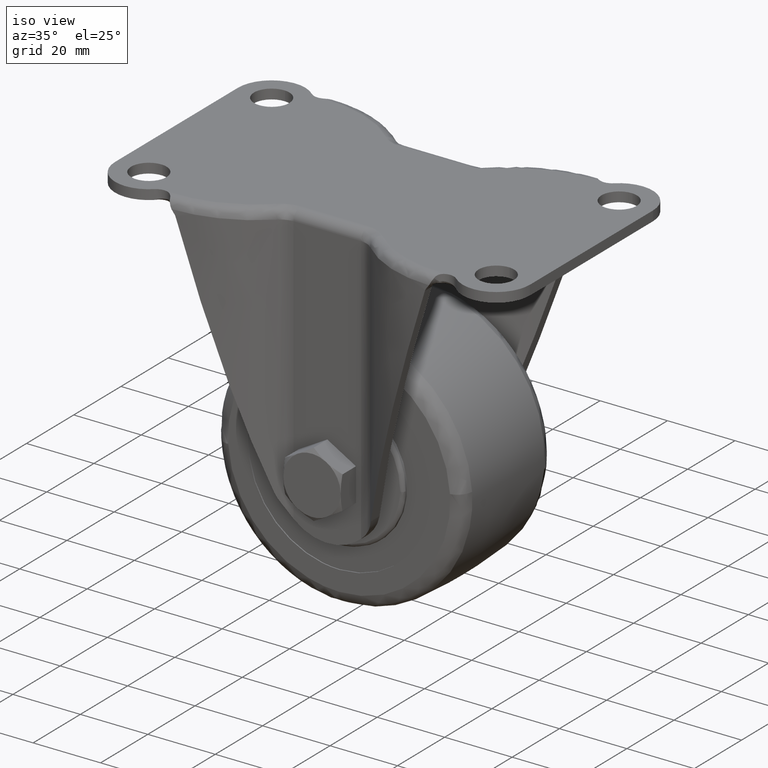
[diagram: clean part render]
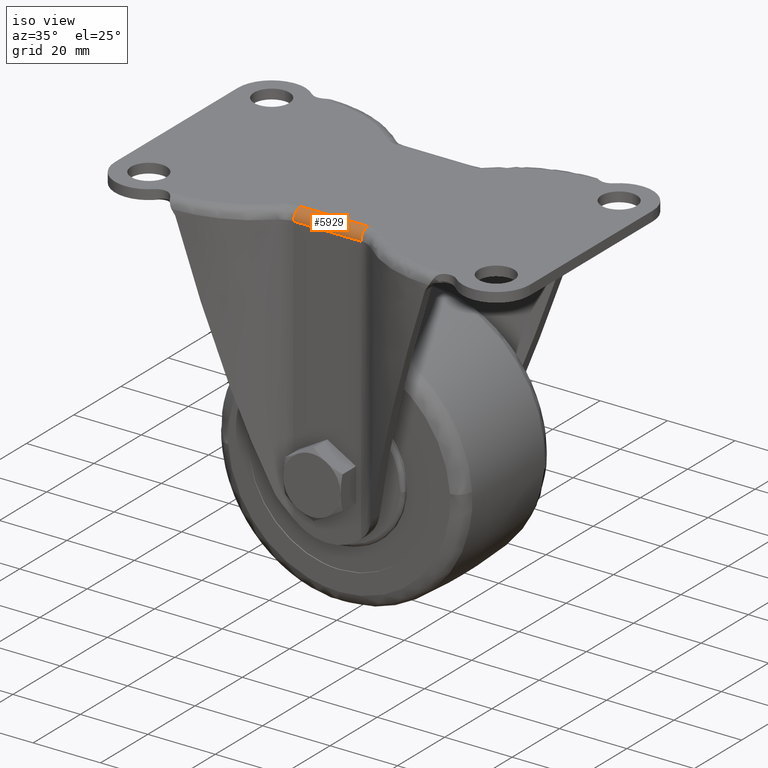
[diagram: same view with one face highlighted and labeled with its STEP entity id]
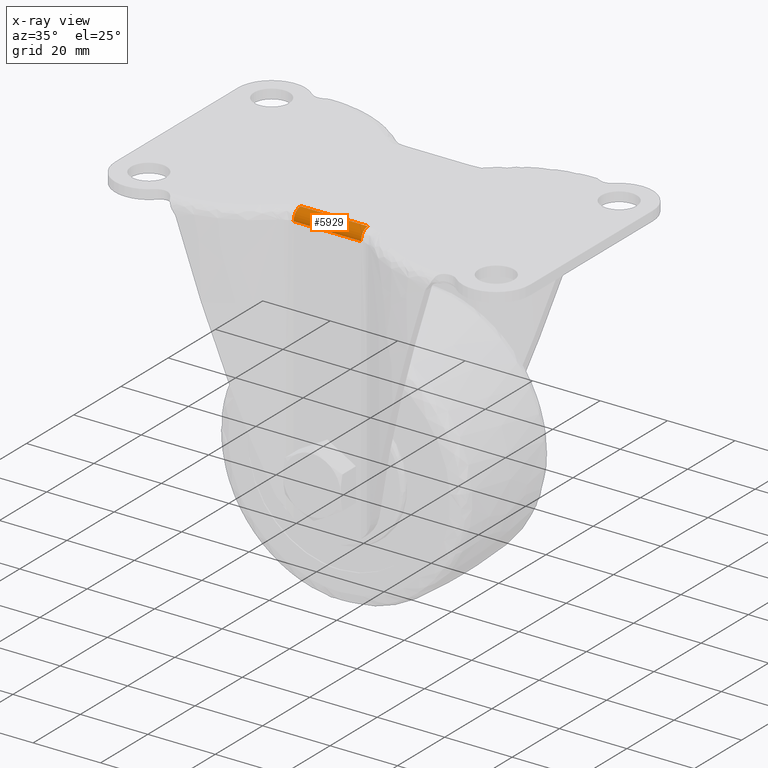
[diagram: x-ray of the same camera — body ghosted, the highlighted face saturated]
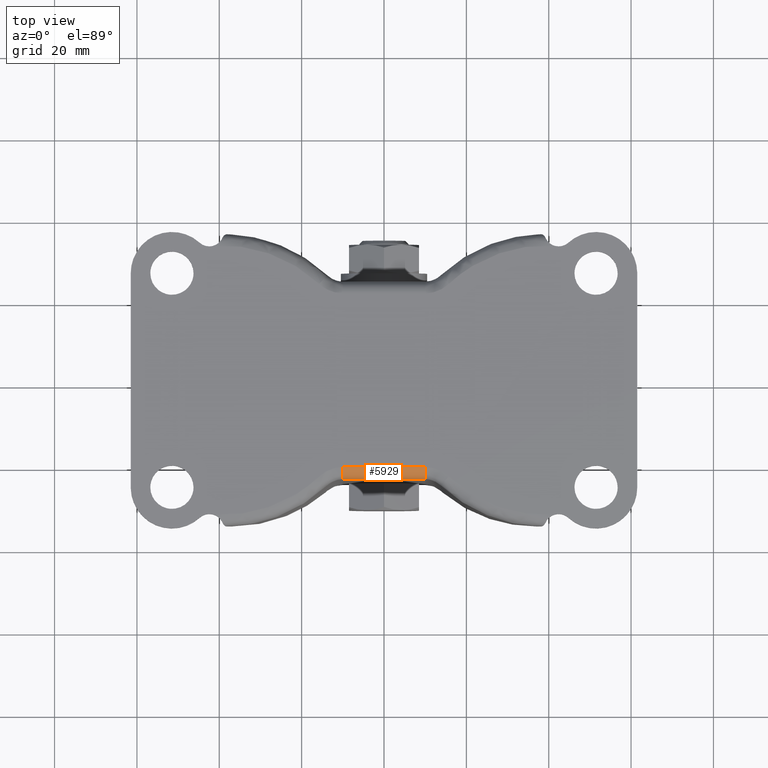
[diagram: same view with one face highlighted and labeled with its STEP entity id]
A machine part, iso view. The second image highlights one B-rep face of the part: STEP entity #5929.
The next image is the same camera in x-ray: the body ghosted, the highlighted face saturated — about 0% of this face is hidden behind the body in this view.
A second angle (top view) of the same face is appended — the face is thin or edge-on in the first view.
In plain terms, the highlighted face is a freeform B-spline surface patch.
Its self-contained STEP definition (entity closure, byte-faithful):
#4307=CARTESIAN_POINT('',(9.973044000000000,-24.0,-2.900000000000000));
#4308=VERTEX_POINT('',#4307);
#4337=CARTESIAN_POINT('',(-9.973043655194129,-24.0,-2.900000000000000));
#4338=VERTEX_POINT('',#4337);
#4339=CARTESIAN_POINT('',(9.973044000000000,-24.0,-2.900000000000000));
#4340=CARTESIAN_POINT('',(-9.973043655194129,-24.0,-2.900000000000000));
#4341=QUASI_UNIFORM_CURVE('',1,(#4339,#4340),.UNSPECIFIED.,.F.,.U.);
#4342=EDGE_CURVE('',#4308,#4338,#4341,.T.);
#5858=CARTESIAN_POINT('',(9.973044181806790,-21.100000000000001,0.0));
#5859=VERTEX_POINT('',#5858);
#5860=CARTESIAN_POINT('',(9.973044181806790,-21.100000000000001,0.0));
#5861=CARTESIAN_POINT('',(9.973044000000098,-23.999999999999996,4.336809E-016));
#5862=CARTESIAN_POINT('',(9.973044000000098,-23.999999999999989,-2.900000000000000));
#5870=(BOUNDED_CURVE()B_SPLINE_CURVE(2,(#5860,#5861,#5862),.UNSPECIFIED.,.F.,.U.)CURVE()GEOMETRIC_REPRESENTATION_ITEM()QUASI_UNIFORM_CURVE()RATIONAL_B_SPLINE_CURVE((1.0,0.707106781186548,1.0))REPRESENTATION_ITEM(''));
#5871=EDGE_CURVE('',#5859,#4308,#5870,.T.);
#5891=CARTESIAN_POINT('',(10.471696377731810,-21.024086849907171,-0.000993757570885));
#5892=CARTESIAN_POINT('',(-10.484162156017289,-21.024086849907171,-0.000993757570885));
#5893=CARTESIAN_POINT('',(10.471696377731813,-24.217455921608678,0.082627554482160));
#5894=CARTESIAN_POINT('',(-10.484162156017288,-24.217455921608678,0.082627554482160));
#5895=CARTESIAN_POINT('',(10.471696377731812,-23.992820990204354,-3.103928219315354));
#5896=CARTESIAN_POINT('',(-10.484162156017288,-23.992820990204354,-3.103928219315354));
#5904=(BOUNDED_SURFACE()B_SPLINE_SURFACE(1,2,((#5891,#5893,#5895),(#5892,#5894,#5896)),.UNSPECIFIED.,.F.,.F.,.U.)B_SPLINE_SURFACE_WITH_KNOTS((2,2),(3,3),(0.0,20.955858533749112),(0.0,5.136312797856271),.UNSPECIFIED.)GEOMETRIC_REPRESENTATION_ITEM()RATIONAL_B_SPLINE_SURFACE(((1.0,0.670944223154768,0.996392648609106),(1.0,0.670944223154768,0.996392648609106)))REPRESENTATION_ITEM('')SURFACE());
#5905=CARTESIAN_POINT('',(-9.973043655194140,-21.100000000000001,0.0));
#5906=VERTEX_POINT('',#5905);
#5907=CARTESIAN_POINT('',(-9.973043655194140,-21.100000000000001,0.0));
#5908=CARTESIAN_POINT('',(-9.973043655194140,-23.999999999999996,4.336809E-016));
#5909=CARTESIAN_POINT('',(-9.973043655194140,-24.0,-2.900000000000000));
#5917=(BOUNDED_CURVE()B_SPLINE_CURVE(2,(#5907,#5908,#5909),.UNSPECIFIED.,.F.,.U.)CURVE()GEOMETRIC_REPRESENTATION_ITEM()QUASI_UNIFORM_CURVE()RATIONAL_B_SPLINE_CURVE((1.0,0.707106781186548,1.0))REPRESENTATION_ITEM(''));
#5918=EDGE_CURVE('',#5906,#4338,#5917,.T.);
#5919=ORIENTED_EDGE('',*,*,#5918,.T.);
#5920=ORIENTED_EDGE('',*,*,#4342,.F.);
#5921=ORIENTED_EDGE('',*,*,#5871,.F.);
#5922=CARTESIAN_POINT('',(-9.973043655194140,-21.100000000000001,0.0));
#5923=CARTESIAN_POINT('',(9.973044181806790,-21.100000000000001,0.0));
#5924=QUASI_UNIFORM_CURVE('',1,(#5922,#5923),.UNSPECIFIED.,.F.,.U.);
#5925=EDGE_CURVE('',#5906,#5859,#5924,.T.);
#5926=ORIENTED_EDGE('',*,*,#5925,.F.);
#5927=EDGE_LOOP('',(#5919,#5920,#5921,#5926));
#5928=FACE_OUTER_BOUND('',#5927,.T.);
#5929=ADVANCED_FACE('',(#5928),#5904,.T.);